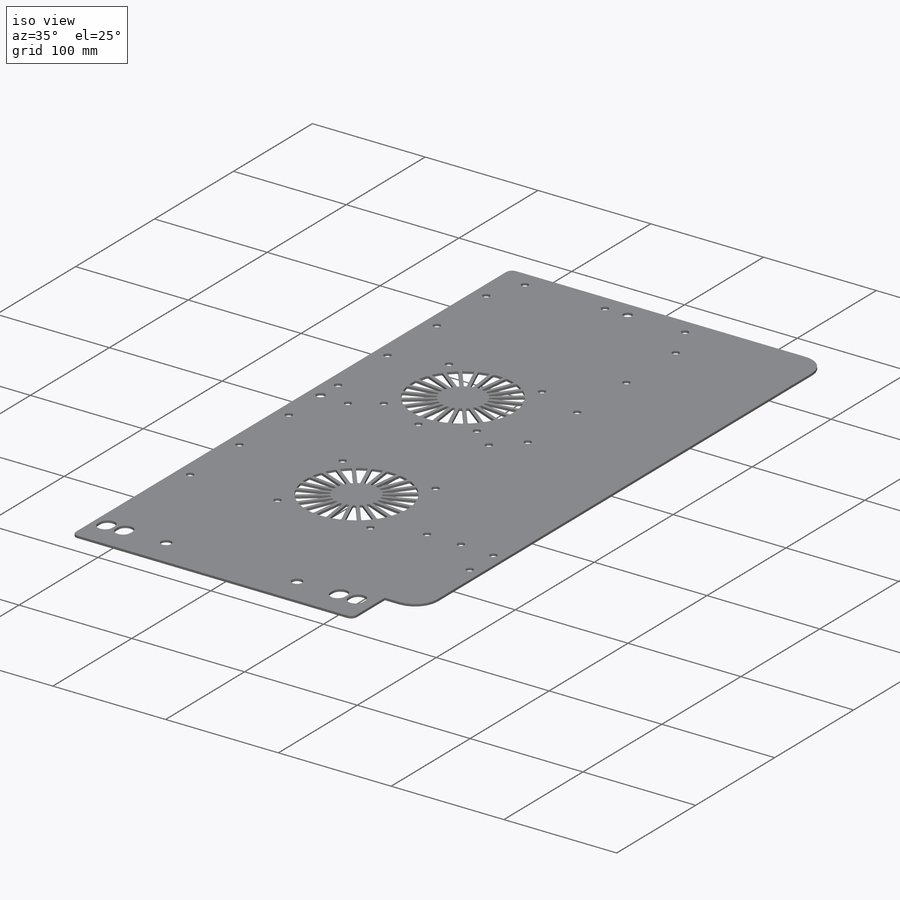
[diagram: iso view]
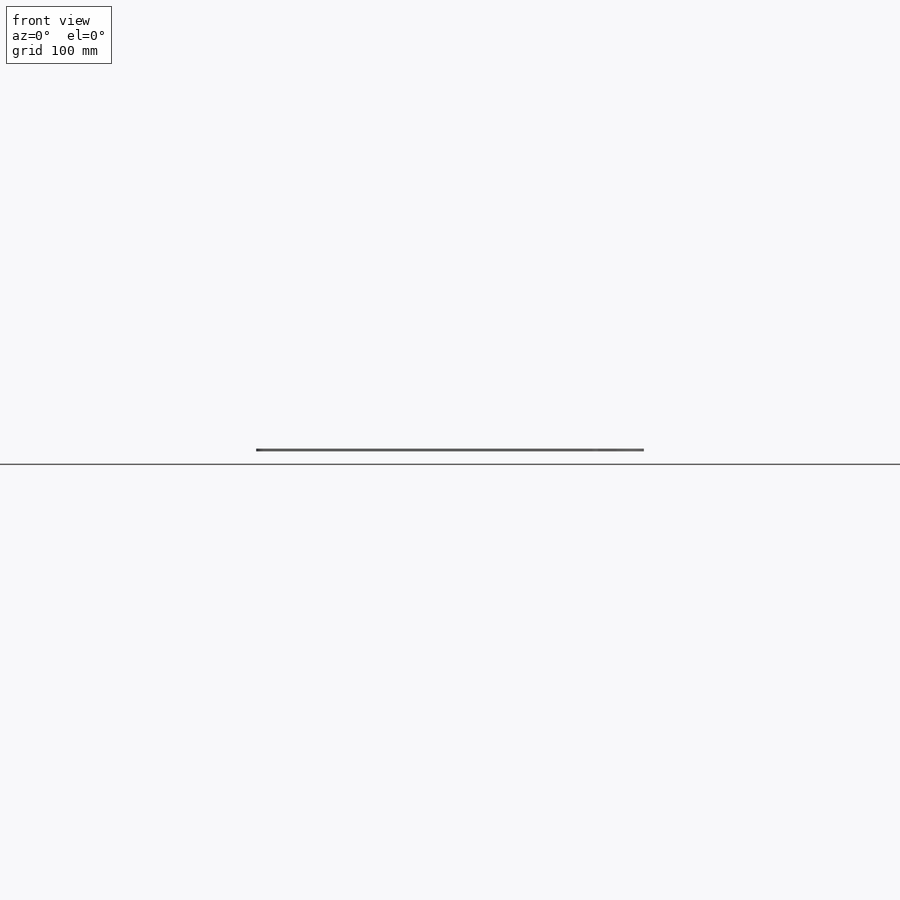
[diagram: front view]
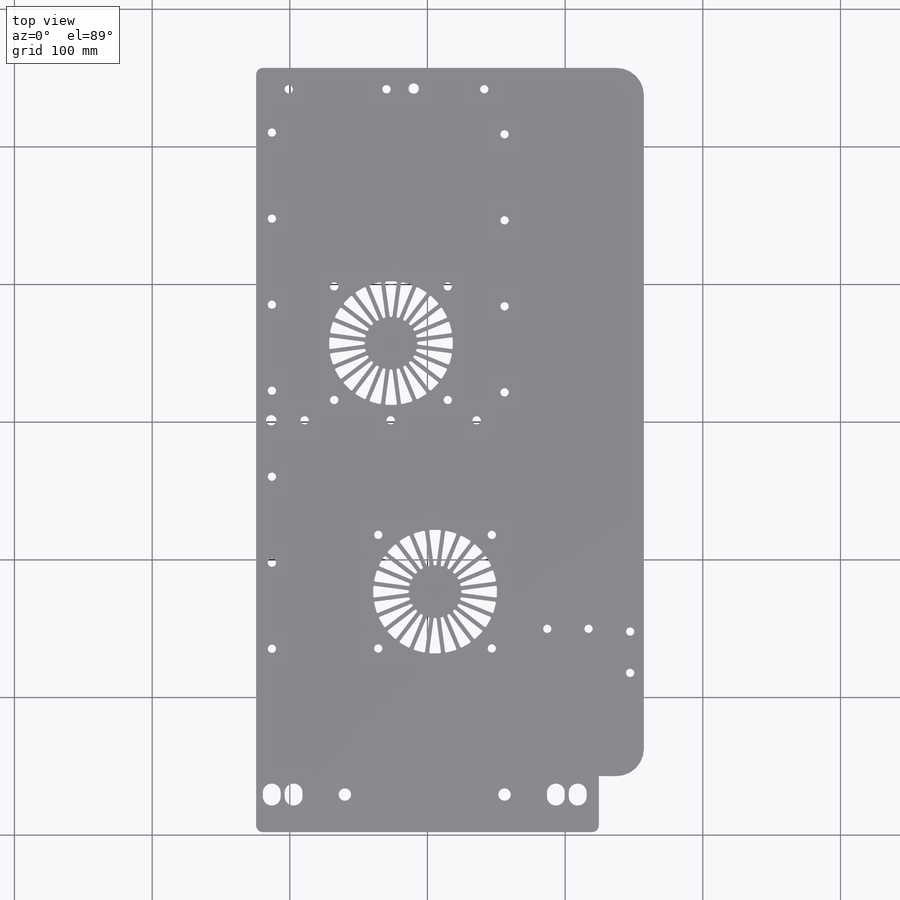
[diagram: top view]
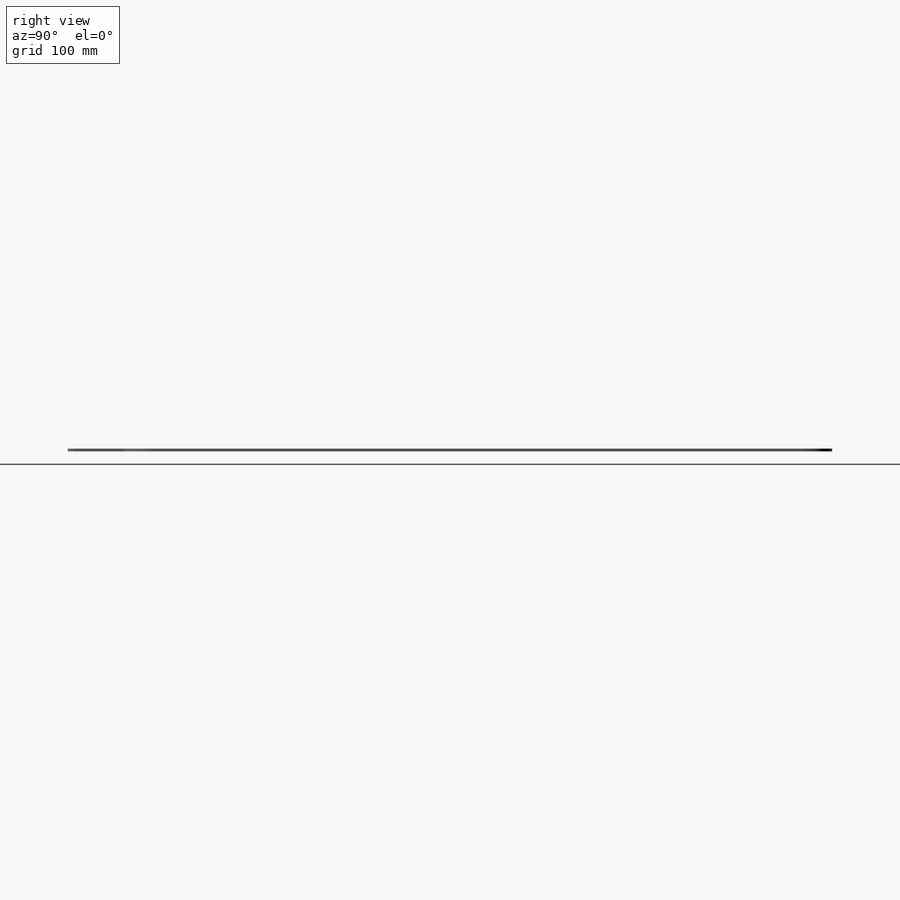
[diagram: right view]
SOLIDWORKS PART (.sldprt)
format: sldprt  version: not decoded by parser v0  size: 2,912,768 bytes
history: native  units: mm
features: sketch x124, sheet_metal_op x42, hole x17, pattern_linear x9, cut_extrude x7, fillet x4, plane x3, material x1 + 38 further entries (+10 scaffold rows collapsed; 38 parser-record rows omitted)
feature tree (293):
  scaffold x10  (default folders/planes/origin — collapsed)
  material  "AlMg3"
  plane  "Ebene vorne"
  plane  "Ebene oben"
  plane  "Ebene rechts"
  sketch  "Skizze1"  dims[c1.D1=514.5mm c1.D2=249.0mm c2.D1=2.0mm c2.D2=0.5 c2.D3=0.0mm c2.D6=500.0mm]
  sheet_metal_op  "Basis-Blech1"
  sketch  "Skizze8"  dims[c1.D1=2.0mm c1.D4=90.0deg c1.D5=1.0 c1.D8=1.0mm c1.D9=1.0mm c2.D1=2.0mm c2.D2=500.0mm c2.D3=0.0mm c2.D6=10.0mm c2.D7=30.0mm c2.Kante-Lasche2=0.0]
  sketch  "Skizze11"
  sheet_metal_op  "Kantenbiegung2"
  fillet  "Verrundung1"  Radius=20mm
  fillet  "Verrundung2"  Radius=5mm Kante-Lasche3=0
  sketch  "Skizze14"
  sheet_metal_op  "Kantenbiegung3"  Kante-Lasche4=0
  sketch  "Skizze17"
  sheet_metal_op  "Kantenbiegung4"
  fillet  "Verrundung3"  Radius=20mm
  fillet  "Verrundung4"  Radius=5mm
  sketch  "Skizze18"  dims[c1.D2=90.0mm c1.D3=38.0mm c1.D4=1.0mm c1.D1=~73.792655mm c2.D1=15.0deg c3.D1=~25.76096mm c4.D1=15.0deg c4.D5=6.5mm c4.D7=200.0mm c4.D8=98.0mm c4.D6=24.0]
  cut_extrude  "Schnitt-Linear austragen1"  [1 undecoded]
  pattern_linear  "Lineares Muster1"  Count1=2 Count2=2 Spacing1=180.5mm Spacing2=32mm
  sketch  "Skizze19"  dims[D1=6.5mm]
  cut_extrude  "Schnitt-Linear austragen2"  [1 undecoded]
  sketch  "Skizze20"  dims[D1=6.5mm]
  cut_extrude  "Schnitt-Linear austragen3"  [1 undecoded]
  sketch  "Skizze21"  dims[D1=9.0mm D2=9.0mm]
  cut_extrude  "Schnitt-Linear austragen4"  [1 undecoded]
  sketch  "Skizze22"  dims[D1=9.0mm D2=9.0mm]
  cut_extrude  "Schnitt-Linear austragen5"  [1 undecoded]
  hole  "Ø6.0 (6) Durchmesser Bohrung1"  Diameter=6mm Depth=2mm
  sketch  "Skizze24"  dims[D1=75.0mm D2=30.0mm D3=10.0mm]
  sketch  "Skizze23"  dims[hole-wizard template sketch: 59 standard entries collapsed; hole parameters kept: c18.Bohrerdurchmesser=6.0mm c18.Bohrungstiefe=2.0mm]
  hole  "Ø6.0 (6) Durchmesser Bohrung2"  Diameter=6mm Depth=2mm
  sketch  "Skizze26"  dims[D1=30.0mm D2=75.0mm D3=10.0mm]
  sketch  "Skizze25"  dims[hole-wizard template sketch: 59 standard entries collapsed; hole parameters kept: c18.Bohrerdurchmesser=6.0mm c18.Bohrungstiefe=2.0mm]
  hole  "Ø6.0 (6) Durchmesser Bohrung3"  Diameter=6mm Depth=32mm
  sketch  "Skizze28"  dims[D1=23.75mm D2=15.5mm]
  sketch  "Skizze27"  dims[hole-wizard template sketch: 59 standard entries collapsed; hole parameters kept: c18.Bohrerdurchmesser=6.0mm c18.Bohrungstiefe=32.0mm]
  pattern_linear  "Lineares Muster2"  Count1=3 Count2=1 Spacing1=71mm Spacing2=10mm
  hole  "Ø6.0 (6) Durchmesser Bohrung4"  Diameter=6mm Depth=32mm
  sketch  "Skizze30"  dims[D1=47.0mm D2=11.5mm]
  sketch  "Skizze29"  dims[hole-wizard template sketch: 59 standard entries collapsed; hole parameters kept: c18.Bohrerdurchmesser=6.0mm c18.Bohrungstiefe=32.0mm]
  pattern_linear  "Lineares Muster3"  Count1=7 Count2=1 Spacing1=62.5mm Spacing2=10mm
  hole  "Ø6.0 (6) Durchmesser Bohrung5"  Diameter=6mm Depth=32mm
  sketch  "Skizze32"  dims[D1=35.25mm D2=256.0mm]
  sketch  "Skizze31"  dims[hole-wizard template sketch: 59 standard entries collapsed; hole parameters kept: c18.Bohrerdurchmesser=6.0mm c18.Bohrungstiefe=32.0mm]
  pattern_linear  "Lineares Muster4"  Count1=3 Count2=1 Spacing1=62.5mm Spacing2=10mm
  hole  "Ø6.0 (6) Durchmesser Bohrung6"  Diameter=6mm Depth=32mm
  sketch  "Skizze34"  dims[D1=180.5mm D2=48.25mm]
  sketch  "Skizze33"  dims[hole-wizard template sketch: 59 standard entries collapsed; hole parameters kept: c18.Bohrerdurchmesser=6.0mm c18.Bohrungstiefe=32.0mm]
  pattern_linear  "Lineares Muster5"  Count1=4 Count2=1 Spacing1=62.5mm Spacing2=10mm
  hole  "Ø6.0 (6) Durchmesser Bohrung7"  Diameter=6mm Depth=32mm
  sketch  "Skizze36"  dims[D1=11.5mm D2=47.0mm]
  sketch  "Skizze35"  dims[hole-wizard template sketch: 59 standard entries collapsed; hole parameters kept: c18.Bohrerdurchmesser=6.0mm c18.Bohrungstiefe=32.0mm]
  pattern_linear  "Lineares Muster6"  Count1=7 Count2=1 Spacing1=62.5mm Spacing2=10mm
  hole  "Ø6.0 (6) Durchmesser Bohrung8"  Diameter=6mm Depth=32mm
  sketch  "Skizze38"  dims[D1=23.75mm D2=15.5mm]
  sketch  "Skizze37"  dims[hole-wizard template sketch: 59 standard entries collapsed; hole parameters kept: c18.Bohrerdurchmesser=6.0mm c18.Bohrungstiefe=32.0mm]
  pattern_linear  "Lineares Muster7"  Count1=3 Count2=1 Spacing1=71mm Spacing2=10mm
  hole  "Ø6.0 (6) Durchmesser Bohrung9"  Diameter=6mm Depth=32mm
  sketch  "Skizze40"  dims[D1=256.0mm D2=35.25mm]
  sketch  "Skizze39"  dims[hole-wizard template sketch: 59 standard entries collapsed; hole parameters kept: c18.Bohrerdurchmesser=6.0mm c18.Bohrungstiefe=32.0mm]
  pattern_linear  "Lineares Muster8"  Count1=3 Count2=1 Spacing1=62.5mm Spacing2=10mm
  hole  "Ø6.0 (6) Durchmesser Bohrung10"  Diameter=6mm Depth=32mm
  sketch  "Skizze42"  dims[D1=48.25mm D2=180.5mm]
  sketch  "Skizze41"  dims[hole-wizard template sketch: 59 standard entries collapsed; hole parameters kept: c18.Bohrerdurchmesser=6.0mm c18.Bohrungstiefe=32.0mm]
  pattern_linear  "Lineares Muster9"  Count1=4 Count2=1 Spacing1=62.5mm Spacing2=10mm
  hole  "Ø7.5 (7.5) Durchmesser Bohrung1"  Diameter=7.5mm Depth=32mm
  sketch  "Skizze44"  dims[D1=11.0mm D2=256.0mm]
  sketch  "Skizze43"  dims[hole-wizard template sketch: 59 standard entries collapsed; hole parameters kept: c18.Bohrerdurchmesser=7.5mm c18.Bohrungstiefe=32.0mm]
  hole  "Ø7.5 (7.5) Durchmesser Bohrung2"  Diameter=7.5mm Depth=32mm
  sketch  "Skizze46"  dims[D1=15.0mm D2=114.5mm]
  sketch  "Skizze45"  dims[hole-wizard template sketch: 59 standard entries collapsed; hole parameters kept: c18.Bohrerdurchmesser=7.5mm c18.Bohrungstiefe=32.0mm]
  hole  "Ø7.5 (7.5) Durchmesser Bohrung3"  Diameter=7.5mm Depth=40mm
  sketch  "Skizze48"  dims[D1=15.0mm D2=114.5mm D3=256.0mm D4=11.0mm]
  sketch  "Skizze47"  dims[hole-wizard template sketch: 59 standard entries collapsed; hole parameters kept: c18.Bohrerdurchmesser=7.5mm c18.Bohrungstiefe=40.0mm]
  hole  "Ø6.0 (6) Durchmesser Bohrung11"  Diameter=6mm Depth=2mm
  sketch  "Skizze50"  dims[D1=82.5mm D2=82.5mm D3=82.5mm D4=82.5mm]
  sketch  "Skizze49"  dims[hole-wizard template sketch: 59 standard entries collapsed; hole parameters kept: c18.Bohrerdurchmesser=6.0mm c18.Bohrungstiefe=2.0mm]
  hole  "Ø6.0 (6) Durchmesser Bohrung12"  Diameter=6mm Depth=32mm
  sketch  "Skizze52"  dims[D1=30.0mm D2=11.5mm D3=407.5mm]
  sketch  "Skizze51"  dims[hole-wizard template sketch: 59 standard entries collapsed; hole parameters kept: c18.Bohrerdurchmesser=6.0mm c18.Bohrungstiefe=32.0mm]
  sketch  "Skizze53"  dims[D3=13.5mm D1=305.35mm D2=121.5mm]
  cut_extrude  "Schnitt-Linear austragen6"  [1 undecoded]
  hole  "Ø6.0 (6) Durchmesser Bohrung13"  Diameter=6mm Depth=2mm
  sketch  "Skizze55"  dims[D1=30.0mm D2=11.5mm D3=407.5mm]
  sketch  "Skizze54"  dims[hole-wizard template sketch: 59 standard entries collapsed; hole parameters kept: c18.Bohrerdurchmesser=6.0mm c18.Bohrungstiefe=2.0mm]
  hole  "Ø4.5 (4.5) Durchmesser Bohrung1"  Diameter=4.5mm Depth=2mm
  sketch  "Skizze57"  dims[D1=40.0mm D2=25.0mm D3=275.0mm]
  sketch  "Skizze56"  dims[hole-wizard template sketch: 59 standard entries collapsed; hole parameters kept: c18.Bohrerdurchmesser=4.5mm c18.Bohrungstiefe=2.0mm]
  sketch  "Skizze58"  dims[D1=26.0mm]
  cut_extrude  "Schnitt-Linear austragen7"  [1 undecoded]
  sketch  "Biegung-Linien1"
  sketch  "Rahmen1"
  sheet_metal_op  "Blech1"
  "Abwicklung1"
  sketch  "Biegung-Linien2"
  sketch  "Rahmen2"
  parser-record x38  (decoder bookkeeping rows leaked as tree rows — omitted from the tree; the rows remain in map.json)
  sheet_metal_op  "Blech2"
  "Abwicklung1"
  sketch  "Biegung-Linien2"
  sketch  "Rahmen2"
  sheet_metal_op  "Blech3"
  "Abwicklung1"
  sketch  "Biegung-Linien2"
  sketch  "Rahmen2"
  sheet_metal_op  "Blech4"
  "Abwicklung1"
  sketch  "Biegung-Linien2"
  sketch  "Rahmen2"
  sheet_metal_op  "Blech5"
  "Abwicklung1"
  sketch  "Biegung-Linien2"
  sketch  "Rahmen2"
  sheet_metal_op  "Blech6"
  "Abwicklung1"
  sketch  "Biegung-Linien2"
  sketch  "Rahmen2"
  sheet_metal_op  "Blech7"
  "Abwicklung1"
  sketch  "Biegung-Linien2"
  sketch  "Rahmen2"
  sheet_metal_op  "Blech8"
  "Abwicklung1"
  sketch  "Biegung-Linien2"
  sketch  "Rahmen2"
  sheet_metal_op  "Blech9"
  "Abwicklung1"
  sketch  "Biegung-Linien2"
  sketch  "Rahmen2"
  sheet_metal_op  "Blech10"
  "Abwicklung1"
  sketch  "Biegung-Linien2"
  sketch  "Rahmen2"
  sheet_metal_op  "Blech11"
  "Abwicklung1"
  sketch  "Biegung-Linien2"
  sketch  "Rahmen2"
  sheet_metal_op  "Blech12"
  "Abwicklung1"
  sketch  "Biegung-Linien2"
  sketch  "Rahmen2"
  sheet_metal_op  "Blech13"
  "Abwicklung1"
  sketch  "Biegung-Linien2"
  sketch  "Rahmen2"
  sheet_metal_op  "Blech14"
  "Abwicklung1"
  sketch  "Biegung-Linien2"
  sketch  "Rahmen2"
  sheet_metal_op  "Blech15"
  "Abwicklung1"
  sketch  "Biegung-Linien2"
  sketch  "Rahmen2"
  sheet_metal_op  "Blech16"
  "Abwicklung1"
  sketch  "Biegung-Linien2"
  sketch  "Rahmen2"
  sheet_metal_op  "Blech17"
  "Abwicklung1"
  sketch  "Biegung-Linien2"
  sketch  "Rahmen2"
  sheet_metal_op  "Blech18"
  "Abwicklung1"
  sketch  "Biegung-Linien2"
  sketch  "Rahmen2"
  sheet_metal_op  "Blech19"
  "Abwicklung1"
  sketch  "Biegung-Linien2"
  sketch  "Rahmen2"
  sheet_metal_op  "Blech20"
  "Abwicklung1"
  sketch  "Biegung-Linien2"
  sketch  "Rahmen2"
  sheet_metal_op  "Blech21"
  "Abwicklung1"
  sketch  "Biegung-Linien2"
  sketch  "Rahmen2"
  sheet_metal_op  "Blech22"
  "Abwicklung1"
  sketch  "Biegung-Linien2"
  sketch  "Rahmen2"
  sheet_metal_op  "Blech23"
  "Abwicklung1"
  sketch  "Biegung-Linien2"
  sketch  "Rahmen2"
  sheet_metal_op  "Blech24"
  "Abwicklung1"
  sketch  "Biegung-Linien2"
  sketch  "Rahmen2"
  sheet_metal_op  "Blech25"
  "Abwicklung1"
  sketch  "Biegung-Linien2"
  sketch  "Rahmen2"
  sheet_metal_op  "Blech26"
  "Abwicklung1"
  sketch  "Biegung-Linien2"
  sketch  "Rahmen2"
  sheet_metal_op  "Blech27"
  "Abwicklung1"
  sketch  "Biegung-Linien2"
  sketch  "Rahmen2"
  sheet_metal_op  "Blech28"
  "Abwicklung1"
  sketch  "Biegung-Linien2"
  sketch  "Rahmen2"
  sheet_metal_op  "Blech29"
  "Abwicklung1"
  sketch  "Biegung-Linien2"
  sketch  "Rahmen2"
  sheet_metal_op  "Blech30"
  "Abwicklung1"
  sketch  "Biegung-Linien2"
  sketch  "Rahmen2"
  sheet_metal_op  "Blech31"
  "Abwicklung1"
  sketch  "Biegung-Linien2"
  sketch  "Rahmen2"
  sheet_metal_op  "Blech32"
  "Abwicklung1"
  sketch  "Biegung-Linien2"
  sketch  "Rahmen2"
  sheet_metal_op  "Blech33"
  "Abwicklung1"
  sketch  "Biegung-Linien2"
  sketch  "Rahmen2"
  sheet_metal_op  "Blech34"
  "Abwicklung1"
  sketch  "Biegung-Linien2"
  sketch  "Rahmen2"
  sheet_metal_op  "Blech35"
  "Abwicklung1"
  sketch  "Biegung-Linien2"
  sketch  "Rahmen2"
  sheet_metal_op  "Blech36"
  "Abwicklung1"
  sketch  "Biegung-Linien2"
  sketch  "Rahmen2"
  sheet_metal_op  "Blech37"
  "Abwicklung1"
  sketch  "Biegung-Linien2"
  sketch  "Rahmen2"
  sheet_metal_op  "Blech38"
  "Abwicklung1"
  sketch  "Biegung-Linien2"
  sketch  "Rahmen2"
decode coverage: 74 of 203 modeling features carry decoded parameters; 38 rows unclassified (native names shown)
note: ~ marks probable driven/reference dimensions
note: 7 parameter values undecoded
summary: Diameter pulled from absorbed wizard sketch | no parameter record found for 7 features
note: suppression state not decoded; provenance and decode notes live in map.json
